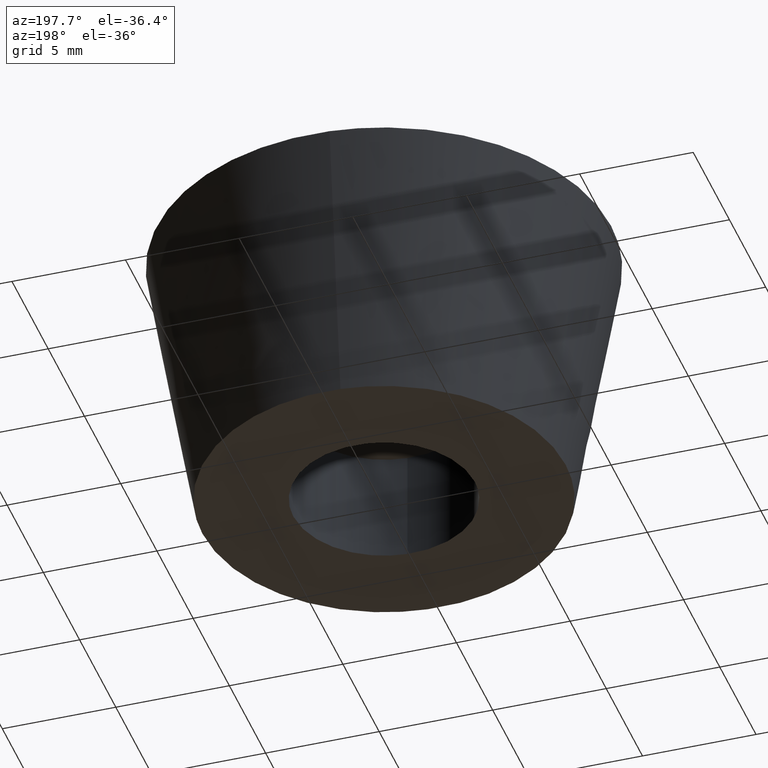
[diagram: clean part render]
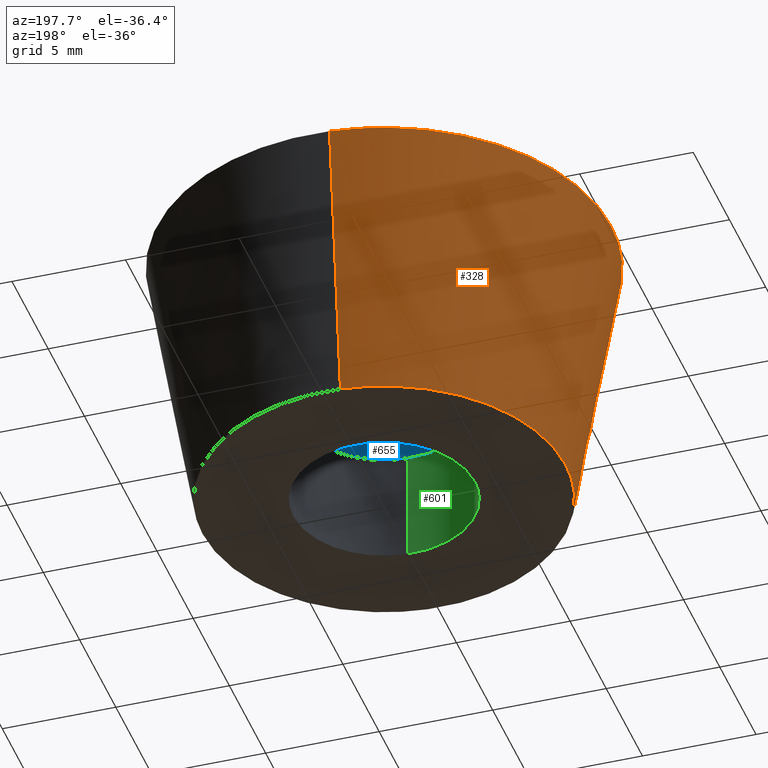
[diagram: same view with three faces highlighted in distinct colors, each labeled with its STEP entity id]
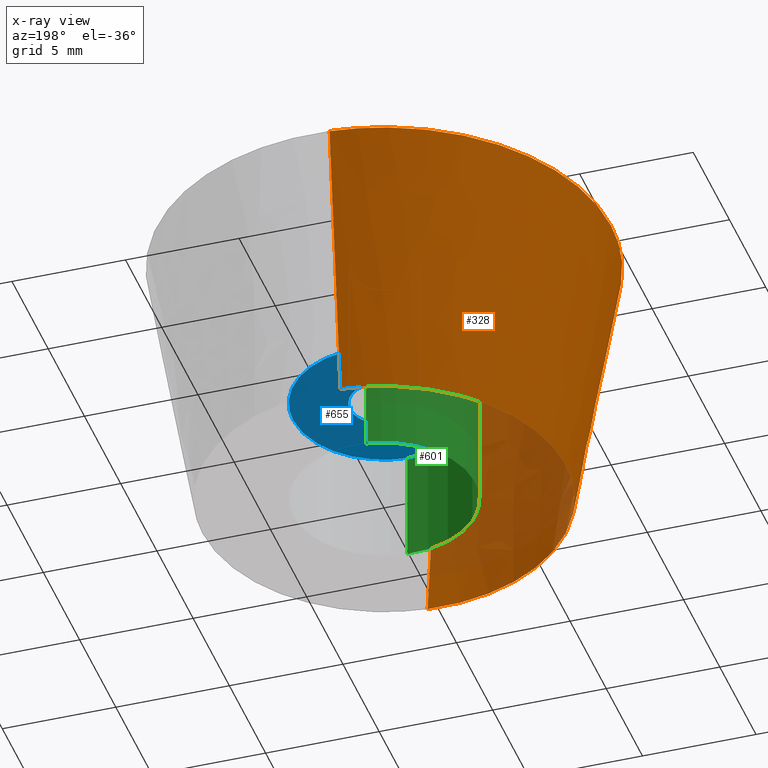
[diagram: x-ray of the same camera — body ghosted, the three highlighted faces saturated]
A machine part, auxiliary view with three faces highlighted in distinct colors.
The next image is the same camera in x-ray (body ghosted, the three faces saturated) — at least one of them is partly hidden behind the body in this view.
Their STEP definitions:

[orange] entity #328 — the highlighted face is a freeform B-spline surface patch.
#230=CARTESIAN_POINT('',(-0.623749811036372,7.925492803178367,-0.300000000000000));
#231=CARTESIAN_POINT('',(-8.549242614214739,7.301742992141994,-0.300000000000000));
#232=CARTESIAN_POINT('',(-7.925492803178367,-0.623749811036372,-0.300000000000000));
#233=CARTESIAN_POINT('',(-7.301742992141994,-8.549242614214739,-0.300000000000000));
#234=CARTESIAN_POINT('',(0.623749811036372,-7.925492803178367,-0.300000000000000));
#235=CARTESIAN_POINT('',(-0.788611985934507,10.020265350685101,12.307499999999999));
#236=CARTESIAN_POINT('',(-10.808877336619602,9.231653364750589,12.307500000000005));
#237=CARTESIAN_POINT('',(-10.020265350685101,-0.788611985934507,12.307499999999999));
#238=CARTESIAN_POINT('',(-9.231653364750589,-10.808877336619602,12.307500000000005));
#239=CARTESIAN_POINT('',(0.788611985934507,-10.020265350685101,12.307499999999999));
#247=(BOUNDED_SURFACE()B_SPLINE_SURFACE(2,1,((#230,#235),(#231,#236),(#232,#237),(#233,#238),(#234,#239)),.UNSPECIFIED.,.F.,.F.,.U.)B_SPLINE_SURFACE_WITH_KNOTS((3,2,3),(2,2),(0.0,16.653456275210271,33.306912550420542),(0.0,12.781404766789141),.UNSPECIFIED.)GEOMETRIC_REPRESENTATION_ITEM()RATIONAL_B_SPLINE_SURFACE(((1.0,1.0),(0.707106781186548,0.707106781186548),(1.0,1.0),(0.707106781186548,0.707106781186548),(1.0,1.0)))REPRESENTATION_ITEM('')SURFACE());
#248=CARTESIAN_POINT('',(-10.0,0.0,12.0));
#249=VERTEX_POINT('',#248);
#250=CARTESIAN_POINT('',(-0.784585127532863,9.969173373309561,11.999997470845130));
#251=VERTEX_POINT('',#250);
#252=CARTESIAN_POINT('',(-10.0,0.0,12.0));
#253=CARTESIAN_POINT('',(-9.999999983463788,9.243910098048547,11.999998735422569));
#254=CARTESIAN_POINT('',(-0.784585127532863,9.969173373309561,11.999997470845130));
#262=(BOUNDED_CURVE()B_SPLINE_CURVE(2,(#252,#253,#254),.UNSPECIFIED.,.F.,.U.)B_SPLINE_CURVE_WITH_KNOTS((3,3),(0.0,0.236331400309219),.UNSPECIFIED.)CURVE()GEOMETRIC_REPRESENTATION_ITEM()RATIONAL_B_SPLINE_CURVE((1.0,0.723120541826970,0.969723564189059))REPRESENTATION_ITEM(''));
#263=EDGE_CURVE('',#249,#251,#262,.T.);
#264=ORIENTED_EDGE('',*,*,#263,.T.);
#265=CARTESIAN_POINT('',(-0.627667634998426,7.975338697900941,-0.000002247642436));
#266=VERTEX_POINT('',#265);
#267=CARTESIAN_POINT('',(-0.627667634998426,7.975338697900941,-0.000002247642436));
#268=CARTESIAN_POINT('',(-0.784585127532863,9.969173373309561,11.999997470845130));
#269=QUASI_UNIFORM_CURVE('',1,(#267,#268),.UNSPECIFIED.,.F.,.U.);
#270=EDGE_CURVE('',#266,#251,#269,.T.);
#271=ORIENTED_EDGE('',*,*,#270,.F.);
#272=CARTESIAN_POINT('',(-8.0,0.0,0.0));
#273=VERTEX_POINT('',#272);
#274=CARTESIAN_POINT('',(-8.0,0.0,0.0));
#275=CARTESIAN_POINT('',(-7.999999985304389,7.395128491465187,-0.000001123821218));
#276=CARTESIAN_POINT('',(-0.627667634998426,7.975338697900941,-0.000002247642436));
#284=(BOUNDED_CURVE()B_SPLINE_CURVE(2,(#274,#275,#276),.UNSPECIFIED.,.F.,.U.)B_SPLINE_CURVE_WITH_KNOTS((3,3),(0.0,0.236331410284618),.UNSPECIFIED.)CURVE()GEOMETRIC_REPRESENTATION_ITEM()RATIONAL_B_SPLINE_CURVE((1.0,0.723120530140062,0.969723585006977))REPRESENTATION_ITEM(''));
#285=EDGE_CURVE('',#273,#266,#284,.T.);
#286=ORIENTED_EDGE('',*,*,#285,.F.);
#287=CARTESIAN_POINT('',(0.627667634998426,-7.975338697900941,-0.000002247642436));
#288=VERTEX_POINT('',#287);
#289=CARTESIAN_POINT('',(0.627667634998426,-7.975338697900941,-0.000002247642436));
#290=CARTESIAN_POINT('',(0.314318264650338,-7.999999633327826,-0.000002206826229));
#291=CARTESIAN_POINT('',(-0.000000028280102,-7.999999640664289,-0.000002162671533));
#292=CARTESIAN_POINT('',(-8.000000013584492,-7.999999827391257,-0.000001038850315));
#293=CARTESIAN_POINT('',(-8.0,0.0,0.0));
#301=(BOUNDED_CURVE()B_SPLINE_CURVE(2,(#289,#290,#291,#292,#293),.UNSPECIFIED.,.F.,.U.)B_SPLINE_CURVE_WITH_KNOTS((3,2,3),(0.736331410284618,0.750000000000000,1.0),.UNSPECIFIED.)CURVE()GEOMETRIC_REPRESENTATION_ITEM()RATIONAL_B_SPLINE_CURVE((0.969723585006977,0.983986251046486,1.0,0.707106781186548,1.0))REPRESENTATION_ITEM(''));
#302=EDGE_CURVE('',#288,#273,#301,.T.);
#303=ORIENTED_EDGE('',*,*,#302,.F.);
#304=CARTESIAN_POINT('',(0.784585127532862,-9.969173373309561,11.999997470845139));
#305=VERTEX_POINT('',#304);
#306=CARTESIAN_POINT('',(0.627667634998426,-7.975338697900941,-0.000002247642436));
#307=CARTESIAN_POINT('',(0.784585127532862,-9.969173373309561,11.999997470845139));
#308=QUASI_UNIFORM_CURVE('',1,(#306,#307),.UNSPECIFIED.,.F.,.U.);
#309=EDGE_CURVE('',#288,#305,#308,.T.);
#310=ORIENTED_EDGE('',*,*,#309,.T.);
#311=CARTESIAN_POINT('',(0.784585127532862,-9.969173373309561,11.999997470845143));
#312=CARTESIAN_POINT('',(0.392898125818107,-9.999999587403069,11.999997516773519));
#313=CARTESIAN_POINT('',(-0.000000031822138,-9.999999595658411,11.999997566458530));
#314=CARTESIAN_POINT('',(-10.000000015285925,-9.999999805772458,11.999998831035967));
#315=CARTESIAN_POINT('',(-10.0,0.0,12.0));
#323=(BOUNDED_CURVE()B_SPLINE_CURVE(2,(#311,#312,#313,#314,#315),.UNSPECIFIED.,.F.,.U.)B_SPLINE_CURVE_WITH_KNOTS((3,2,3),(0.736331400309219,0.750000000000000,1.0),.UNSPECIFIED.)CURVE()GEOMETRIC_REPRESENTATION_ITEM()RATIONAL_B_SPLINE_CURVE((0.969723564189059,0.983986239359578,1.0,0.707106781186548,1.0))REPRESENTATION_ITEM(''));
#324=EDGE_CURVE('',#305,#249,#323,.T.);
#325=ORIENTED_EDGE('',*,*,#324,.T.);
#326=EDGE_LOOP('',(#264,#271,#286,#303,#310,#325));
#327=FACE_OUTER_BOUND('',#326,.T.);
#328=ADVANCED_FACE('',(#327),#247,.T.);

[blue] entity #655 — the highlighted face is a freeform B-spline surface patch.
#85=CARTESIAN_POINT('',(-0.177051352012514,1.489514289542246,5.000000000000001));
#86=VERTEX_POINT('',#85);
#92=CARTESIAN_POINT('',(1.500000000000000,0.0,5.0));
#93=VERTEX_POINT('',#92);
#94=CARTESIAN_POINT('',(-0.177051352012514,1.489514289542245,5.000000000000001));
#95=CARTESIAN_POINT('',(-0.088836179505531,1.500000000000000,5.000000000000001));
#96=CARTESIAN_POINT('',(0.0,1.500000000000000,5.0));
#97=CARTESIAN_POINT('',(1.500000000000000,1.500000000000000,5.000000000000001));
#98=CARTESIAN_POINT('',(1.500000000000000,0.0,5.0));
#106=(BOUNDED_CURVE()B_SPLINE_CURVE(2,(#94,#95,#96,#97,#98),.UNSPECIFIED.,.F.,.U.)B_SPLINE_CURVE_WITH_KNOTS((3,2,3),(0.229562473509432,0.250000000000000,0.500000000000000),.UNSPECIFIED.)CURVE()GEOMETRIC_REPRESENTATION_ITEM()RATIONAL_B_SPLINE_CURVE((0.956026754175709,0.976055948326369,1.0,0.707106781186548,1.0))REPRESENTATION_ITEM(''));
#107=EDGE_CURVE('',#86,#93,#106,.T.);
#109=CARTESIAN_POINT('',(0.091572809335385,-1.497202197630776,4.999999999999999));
#110=VERTEX_POINT('',#109);
#111=CARTESIAN_POINT('',(1.500000000000000,0.0,5.0));
#112=CARTESIAN_POINT('',(1.500000000000001,-1.411059100296042,5.0));
#113=CARTESIAN_POINT('',(0.091572809335385,-1.497202197630776,4.999999999999999));
#121=(BOUNDED_CURVE()B_SPLINE_CURVE(2,(#111,#112,#113),.UNSPECIFIED.,.F.,.U.)B_SPLINE_CURVE_WITH_KNOTS((3,3),(0.500000000000000,0.739332962234340),.UNSPECIFIED.)CURVE()GEOMETRIC_REPRESENTATION_ITEM()RATIONAL_B_SPLINE_CURVE((1.0,0.719603993292103,0.976072041656852))REPRESENTATION_ITEM(''));
#122=EDGE_CURVE('',#93,#110,#121,.T.);
#196=CARTESIAN_POINT('',(-1.500000000000000,0.0,5.0));
#197=VERTEX_POINT('',#196);
#198=CARTESIAN_POINT('',(0.091572809335385,-1.497202197630776,4.999999999999999));
#199=CARTESIAN_POINT('',(0.045829144981075,-1.500000000000000,5.0));
#200=CARTESIAN_POINT('',(0.0,-1.500000000000000,5.0));
#201=CARTESIAN_POINT('',(-1.500000000000000,-1.500000000000000,5.000000000000001));
#202=CARTESIAN_POINT('',(-1.500000000000000,0.0,5.0));
#210=(BOUNDED_CURVE()B_SPLINE_CURVE(2,(#198,#199,#200,#201,#202),.UNSPECIFIED.,.F.,.U.)B_SPLINE_CURVE_WITH_KNOTS((3,2,3),(0.739332962234339,0.750000000000000,1.0),.UNSPECIFIED.)CURVE()GEOMETRIC_REPRESENTATION_ITEM()RATIONAL_B_SPLINE_CURVE((0.976072041656851,0.987502787894444,1.0,0.707106781186548,1.0))REPRESENTATION_ITEM(''));
#211=EDGE_CURVE('',#110,#197,#210,.T.);
#213=CARTESIAN_POINT('',(-1.500000000000000,0.0,5.0));
#214=CARTESIAN_POINT('',(-1.500000000000001,1.332261788877735,4.999999999999999));
#215=CARTESIAN_POINT('',(-0.177051352012514,1.489514289542246,5.000000000000001));
#223=(BOUNDED_CURVE()B_SPLINE_CURVE(2,(#213,#214,#215),.UNSPECIFIED.,.F.,.U.)B_SPLINE_CURVE_WITH_KNOTS((3,3),(0.0,0.229562473509432),.UNSPECIFIED.)CURVE()GEOMETRIC_REPRESENTATION_ITEM()RATIONAL_B_SPLINE_CURVE((1.0,0.731050832860178,0.956026754175709))REPRESENTATION_ITEM(''));
#224=EDGE_CURVE('',#197,#86,#223,.T.);
#468=CARTESIAN_POINT('',(0.244192908142875,-3.992539270140139,5.0));
#469=VERTEX_POINT('',#468);
#475=CARTESIAN_POINT('',(4.0,0.0,5.0));
#476=VERTEX_POINT('',#475);
#477=CARTESIAN_POINT('',(4.0,0.0,5.0));
#478=CARTESIAN_POINT('',(4.0,-3.762825447901077,5.0));
#479=CARTESIAN_POINT('',(0.244192908142875,-3.992539270140139,5.000000000000001));
#487=(BOUNDED_CURVE()B_SPLINE_CURVE(2,(#477,#478,#479),.UNSPECIFIED.,.F.,.U.)B_SPLINE_CURVE_WITH_KNOTS((3,3),(0.500000000000000,0.739333016263454),.UNSPECIFIED.)CURVE()GEOMETRIC_REPRESENTATION_ITEM()RATIONAL_B_SPLINE_CURVE((1.0,0.719603929993058,0.976072157451557))REPRESENTATION_ITEM(''));
#488=EDGE_CURVE('',#476,#469,#487,.T.);
#490=CARTESIAN_POINT('',(-0.472130034368349,3.972038926118297,5.0));
#491=VERTEX_POINT('',#490);
#492=CARTESIAN_POINT('',(-0.472130034368349,3.972038926118297,5.0));
#493=CARTESIAN_POINT('',(-0.236892989983728,4.0,5.0));
#494=CARTESIAN_POINT('',(0.0,4.0,5.0));
#495=CARTESIAN_POINT('',(4.000000000000000,4.000000000000000,5.000000000000001));
#496=CARTESIAN_POINT('',(4.0,0.0,5.0));
#504=(BOUNDED_CURVE()B_SPLINE_CURVE(2,(#492,#493,#494,#495,#496),.UNSPECIFIED.,.F.,.U.)B_SPLINE_CURVE_WITH_KNOTS((3,2,3),(0.229562767279762,0.250000000000000,0.500000000000000),.UNSPECIFIED.)CURVE()GEOMETRIC_REPRESENTATION_ITEM()RATIONAL_B_SPLINE_CURVE((0.956027329978387,0.976056292499719,1.0,0.707106781186548,1.0))REPRESENTATION_ITEM(''));
#505=EDGE_CURVE('',#491,#476,#504,.T.);
#553=CARTESIAN_POINT('',(-4.0,0.0,5.0));
#554=VERTEX_POINT('',#553);
#555=CARTESIAN_POINT('',(-4.0,0.0,5.0));
#556=CARTESIAN_POINT('',(-4.000000000000001,3.552704322636881,4.999999999999999));
#557=CARTESIAN_POINT('',(-0.472130034368349,3.972038926118297,5.0));
#565=(BOUNDED_CURVE()B_SPLINE_CURVE(2,(#555,#556,#557),.UNSPECIFIED.,.F.,.U.)B_SPLINE_CURVE_WITH_KNOTS((3,3),(0.0,0.229562767279762),.UNSPECIFIED.)CURVE()GEOMETRIC_REPRESENTATION_ITEM()RATIONAL_B_SPLINE_CURVE((1.0,0.731050488686828,0.956027329978387))REPRESENTATION_ITEM(''));
#566=EDGE_CURVE('',#554,#491,#565,.T.);
#568=CARTESIAN_POINT('',(0.244192908142875,-3.992539270140139,5.000000000000001));
#569=CARTESIAN_POINT('',(0.122210426443661,-4.0,4.999999999999999));
#570=CARTESIAN_POINT('',(0.0,-4.0,5.0));
#571=CARTESIAN_POINT('',(-4.000000000000000,-4.000000000000000,5.000000000000001));
#572=CARTESIAN_POINT('',(-4.0,0.0,5.0));
#580=(BOUNDED_CURVE()B_SPLINE_CURVE(2,(#568,#569,#570,#571,#572),.UNSPECIFIED.,.F.,.U.)B_SPLINE_CURVE_WITH_KNOTS((3,2,3),(0.739333016263454,0.750000000000000,1.0),.UNSPECIFIED.)CURVE()GEOMETRIC_REPRESENTATION_ITEM()RATIONAL_B_SPLINE_CURVE((0.976072157451557,0.987502851193490,1.0,0.707106781186548,1.0))REPRESENTATION_ITEM(''));
#581=EDGE_CURVE('',#469,#554,#580,.T.);
#638=CARTESIAN_POINT('',(4.399599984494448,-4.399502853344672,5.0));
#639=CARTESIAN_POINT('',(-4.399600199071169,-4.399502853344672,5.0));
#640=CARTESIAN_POINT('',(4.399599984494448,4.399527243565315,5.0));
#641=CARTESIAN_POINT('',(-4.399600199071169,4.399527243565315,5.0));
#642=B_SPLINE_SURFACE_WITH_KNOTS('',1,1,((#638,#640),(#639,#641)),.UNSPECIFIED.,.F.,.F.,.U.,(2,2),(2,2),(0.0,8.799200183565617),(0.0,8.799030096909988),.UNSPECIFIED.);
#643=ORIENTED_EDGE('',*,*,#566,.T.);
#644=ORIENTED_EDGE('',*,*,#505,.T.);
#645=ORIENTED_EDGE('',*,*,#488,.T.);
#646=ORIENTED_EDGE('',*,*,#581,.T.);
#647=EDGE_LOOP('',(#643,#644,#645,#646));
#648=FACE_OUTER_BOUND('',#647,.T.);
#649=ORIENTED_EDGE('',*,*,#122,.F.);
#650=ORIENTED_EDGE('',*,*,#107,.F.);
#651=ORIENTED_EDGE('',*,*,#224,.F.);
#652=ORIENTED_EDGE('',*,*,#211,.F.);
#653=EDGE_LOOP('',(#649,#650,#651,#652));
#654=FACE_BOUND('',#653,.T.);
#655=ADVANCED_FACE('',(#648,#654),#642,.T.);

[green] entity #601 — the highlighted face is a freeform B-spline surface patch.
#434=CARTESIAN_POINT('',(-0.472129948118010,3.972038936370151,4.401114E-016));
#435=VERTEX_POINT('',#434);
#453=CARTESIAN_POINT('',(0.244192892551057,-3.992539271093766,2.491063E-015));
#454=VERTEX_POINT('',#453);
#468=CARTESIAN_POINT('',(0.244192908142875,-3.992539270140139,5.0));
#469=VERTEX_POINT('',#468);
#470=CARTESIAN_POINT('',(0.244192908142875,-3.992539270140139,5.0));
#471=CARTESIAN_POINT('',(0.244192892551057,-3.992539271093766,2.491063E-015));
#472=QUASI_UNIFORM_CURVE('',1,(#470,#471),.UNSPECIFIED.,.F.,.U.);
#473=EDGE_CURVE('',#469,#454,#472,.T.);
#490=CARTESIAN_POINT('',(-0.472130034368349,3.972038926118297,5.0));
#491=VERTEX_POINT('',#490);
#507=CARTESIAN_POINT('',(-0.472130034368349,3.972038926118297,5.0));
#508=CARTESIAN_POINT('',(-0.472129948118010,3.972038936370151,4.401114E-016));
#509=QUASI_UNIFORM_CURVE('',1,(#507,#508),.UNSPECIFIED.,.F.,.U.);
#510=EDGE_CURVE('',#491,#435,#509,.T.);
#515=CARTESIAN_POINT('',(0.299210877255858,-3.989174226994221,5.124999999999999));
#516=CARTESIAN_POINT('',(0.271781248688852,-3.990851894947137,5.125000000000003));
#517=CARTESIAN_POINT('',(-3.748345035548039,-4.236733351826894,5.125000000000001));
#518=CARTESIAN_POINT('',(-3.992539193687467,-0.244194158139428,5.125000000000001));
#519=CARTESIAN_POINT('',(-4.223144786930110,3.526173963358004,5.125000000000001));
#520=CARTESIAN_POINT('',(-0.444051096566787,3.975376533520318,5.125000000000002));
#521=CARTESIAN_POINT('',(-0.416116205152481,3.978697018813527,5.125000000000002));
#522=CARTESIAN_POINT('',(0.299210877255858,-3.989174226994221,-0.128125000000000));
#523=CARTESIAN_POINT('',(0.271781248688852,-3.990851894947137,-0.128125000000000));
#524=CARTESIAN_POINT('',(-3.748345035548039,-4.236733351826894,-0.128125000000000));
#525=CARTESIAN_POINT('',(-3.992539193687467,-0.244194158139428,-0.128125000000000));
#526=CARTESIAN_POINT('',(-4.223144786930110,3.526173963358004,-0.128125000000000));
#527=CARTESIAN_POINT('',(-0.444051096566787,3.975376533520318,-0.128125000000000));
#528=CARTESIAN_POINT('',(-0.416116205152481,3.978697018813527,-0.128125000000000));
#536=(BOUNDED_SURFACE()B_SPLINE_SURFACE(2,1,((#515,#522),(#516,#523),(#517,#524),(#518,#525),(#519,#526),(#520,#527),(#521,#528)),.UNSPECIFIED.,.F.,.F.,.U.)B_SPLINE_SURFACE_WITH_KNOTS((3,1,2,1,3),(2,2),(0.0,0.064947250903946,6.692364248873464,13.054684566924200,13.119641347048271),(0.0,5.253125000000002),.UNSPECIFIED.)GEOMETRIC_REPRESENTATION_ITEM()RATIONAL_B_SPLINE_SURFACE(((1.005740580191701,1.005740580191701),(1.002870290095850,1.002870290095850),(0.707106781186548,0.707106781186548),(1.0,1.0),(0.718822509939086,0.718822509939086),(0.980146855128439,0.980146855128439),(0.982787909461751,0.982787909461751)))REPRESENTATION_ITEM('')SURFACE());
#537=CARTESIAN_POINT('',(-4.0,0.0,0.0));
#538=VERTEX_POINT('',#537);
#539=CARTESIAN_POINT('',(-4.0,0.0,0.0));
#540=CARTESIAN_POINT('',(-4.000000000000000,3.552704400324676,0.0));
#541=CARTESIAN_POINT('',(-0.472129948118010,3.972038936370151,4.401114E-016));
#549=(BOUNDED_CURVE()B_SPLINE_CURVE(2,(#539,#540,#541),.UNSPECIFIED.,.F.,.U.)B_SPLINE_CURVE_WITH_KNOTS((3,3),(0.0,0.229562770949563),.UNSPECIFIED.)CURVE()GEOMETRIC_REPRESENTATION_ITEM()RATIONAL_B_SPLINE_CURVE((1.0,0.731050484387389,0.956027337171368))REPRESENTATION_ITEM(''));
#550=EDGE_CURVE('',#538,#435,#549,.T.);
#551=ORIENTED_EDGE('',*,*,#550,.T.);
#552=ORIENTED_EDGE('',*,*,#510,.F.);
#553=CARTESIAN_POINT('',(-4.0,0.0,5.0));
#554=VERTEX_POINT('',#553);
#555=CARTESIAN_POINT('',(-4.0,0.0,5.0));
#556=CARTESIAN_POINT('',(-4.000000000000001,3.552704322636881,4.999999999999999));
#557=CARTESIAN_POINT('',(-0.472130034368349,3.972038926118297,5.0));
#565=(BOUNDED_CURVE()B_SPLINE_CURVE(2,(#555,#556,#557),.UNSPECIFIED.,.F.,.U.)B_SPLINE_CURVE_WITH_KNOTS((3,3),(0.0,0.229562767279762),.UNSPECIFIED.)CURVE()GEOMETRIC_REPRESENTATION_ITEM()RATIONAL_B_SPLINE_CURVE((1.0,0.731050488686828,0.956027329978387))REPRESENTATION_ITEM(''));
#566=EDGE_CURVE('',#554,#491,#565,.T.);
#567=ORIENTED_EDGE('',*,*,#566,.F.);
#568=CARTESIAN_POINT('',(0.244192908142875,-3.992539270140139,5.000000000000001));
#569=CARTESIAN_POINT('',(0.122210426443661,-4.0,4.999999999999999));
#570=CARTESIAN_POINT('',(0.0,-4.0,5.0));
#571=CARTESIAN_POINT('',(-4.000000000000000,-4.000000000000000,5.000000000000001));
#572=CARTESIAN_POINT('',(-4.0,0.0,5.0));
#580=(BOUNDED_CURVE()B_SPLINE_CURVE(2,(#568,#569,#570,#571,#572),.UNSPECIFIED.,.F.,.U.)B_SPLINE_CURVE_WITH_KNOTS((3,2,3),(0.739333016263454,0.750000000000000,1.0),.UNSPECIFIED.)CURVE()GEOMETRIC_REPRESENTATION_ITEM()RATIONAL_B_SPLINE_CURVE((0.976072157451557,0.987502851193490,1.0,0.707106781186548,1.0))REPRESENTATION_ITEM(''));
#581=EDGE_CURVE('',#469,#554,#580,.T.);
#582=ORIENTED_EDGE('',*,*,#581,.F.);
#583=ORIENTED_EDGE('',*,*,#473,.T.);
#584=CARTESIAN_POINT('',(0.244192892551057,-3.992539271093766,2.491063E-015));
#585=CARTESIAN_POINT('',(0.122210418625892,-4.000000000000001,0.0));
#586=CARTESIAN_POINT('',(0.0,-4.0,0.0));
#587=CARTESIAN_POINT('',(-4.000000000000000,-4.000000000000000,0.0));
#588=CARTESIAN_POINT('',(-4.0,0.0,0.0));
#596=(BOUNDED_CURVE()B_SPLINE_CURVE(2,(#584,#585,#586,#587,#588),.UNSPECIFIED.,.F.,.U.)B_SPLINE_CURVE_WITH_KNOTS((3,2,3),(0.739333016937291,0.750000000000000,1.0),.UNSPECIFIED.)CURVE()GEOMETRIC_REPRESENTATION_ITEM()RATIONAL_B_SPLINE_CURVE((0.976072158895718,0.987502851982938,1.0,0.707106781186548,1.0))REPRESENTATION_ITEM(''));
#597=EDGE_CURVE('',#454,#538,#596,.T.);
#598=ORIENTED_EDGE('',*,*,#597,.T.);
#599=EDGE_LOOP('',(#551,#552,#567,#582,#583,#598));
#600=FACE_OUTER_BOUND('',#599,.T.);
#601=ADVANCED_FACE('',(#600),#536,.F.);